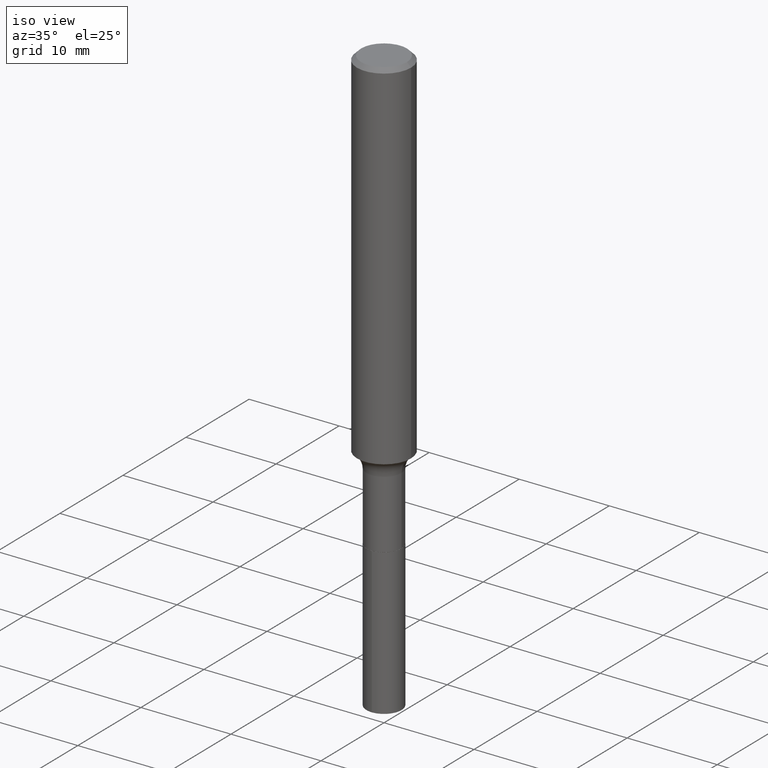
[diagram: clean part render]
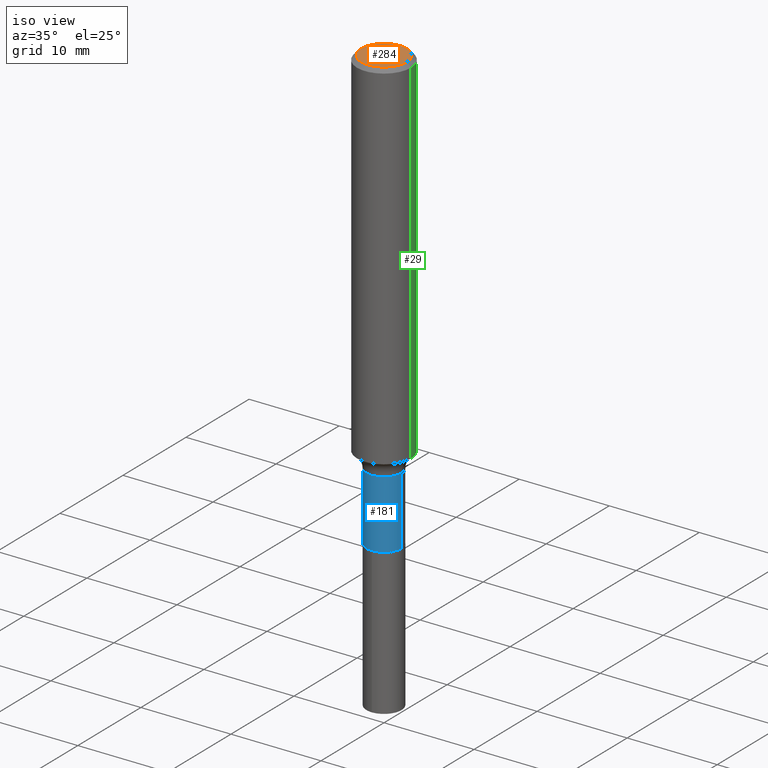
[diagram: same view with three faces highlighted in distinct colors, each labeled with its STEP entity id]
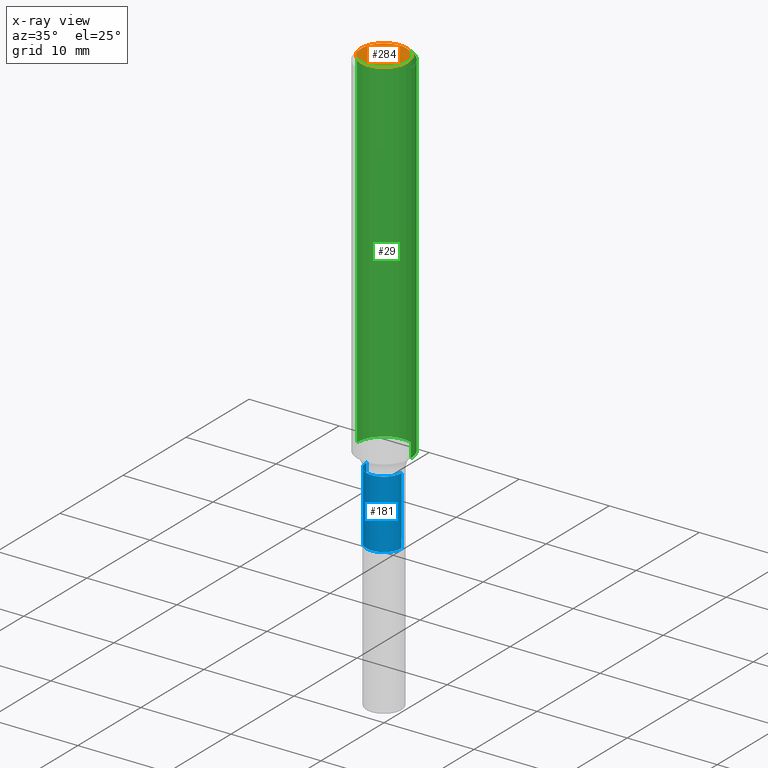
[diagram: x-ray of the same camera — body ghosted, the three highlighted faces saturated]
A machine part, iso view with three faces highlighted in distinct colors.
The next image is the same camera in x-ray (body ghosted, the three faces saturated) — at least one of them is partly hidden behind the body in this view.
Their STEP definitions:

[orange] entity #284 — the highlighted planar face has unit normal (0, -0, -1).
#38 = ORIENTED_EDGE ( 'NONE', *, *, #454, .T. ) ;
#42 = FACE_OUTER_BOUND ( 'NONE', #394, .T. ) ;
#61 = AXIS2_PLACEMENT_3D ( 'NONE', #416, #349, #338 ) ;
#131 = CIRCLE ( 'NONE', #462, 0.1003850000000000159 ) ;
#139 = CIRCLE ( 'NONE', #292, 0.1003850000000000159 ) ;
#177 = DIRECTION ( 'NONE',  ( -2.445468806185136597E-29, 3.491481338843145583E-15, 1.000000000000000000 ) ) ;
#185 = PLANE ( 'NONE',  #61 ) ;
#189 = EDGE_CURVE ( 'NONE', #421, #193, #139, .T. ) ;
#193 = VERTEX_POINT ( 'NONE', #297 ) ;
#194 = DIRECTION ( 'NONE',  ( 1.000000000000000000, -6.982962677686266711E-15, 4.875668750515085695E-29 ) ) ;
#205 = DIRECTION ( 'NONE',  ( -2.445468806185136597E-29, 3.491481338843145583E-15, 1.000000000000000000 ) ) ;
#257 = ORIENTED_EDGE ( 'NONE', *, *, #189, .T. ) ;
#264 = CARTESIAN_POINT ( 'NONE',  ( -0.1003850000000000159, 7.319105043583386689E-16, -2.868857591683090262E-17 ) ) ;
#277 = CARTESIAN_POINT ( 'NONE',  ( 7.015701749847187307E-46, -1.001656274515824970E-31, -2.868857591682589212E-17 ) ) ;
#284 = ADVANCED_FACE ( 'NONE', ( #42 ), #185, .F. ) ;
#292 = AXIS2_PLACEMENT_3D ( 'NONE', #294, #177, #439 ) ;
#294 = CARTESIAN_POINT ( 'NONE',  ( 7.015701749847187307E-46, -1.001656274515824970E-31, -2.868857591682589212E-17 ) ) ;
#297 = CARTESIAN_POINT ( 'NONE',  ( 0.1003850000000000159, -7.803837484803599345E-16, -2.868857591682071522E-17 ) ) ;
#338 = DIRECTION ( 'NONE',  ( -1.000000000000000000, 6.982962677686265922E-15, -4.876176775795935793E-29 ) ) ;
#349 = DIRECTION ( 'NONE',  ( 2.438088387897960049E-29, -3.491481338843145188E-15, -1.000000000000000000 ) ) ;
#394 = EDGE_LOOP ( 'NONE', ( #257, #38 ) ) ;
#416 = CARTESIAN_POINT ( 'NONE',  ( 3.507850874923593654E-46, -5.008281372579124849E-32, -1.434428795841294606E-17 ) ) ;
#421 = VERTEX_POINT ( 'NONE', #264 ) ;
#439 = DIRECTION ( 'NONE',  ( 1.000000000000000000, -6.982962677686266711E-15, 4.875668750515085695E-29 ) ) ;
#454 = EDGE_CURVE ( 'NONE', #193, #421, #131, .T. ) ;
#462 = AXIS2_PLACEMENT_3D ( 'NONE', #277, #205, #194 ) ;

[blue] entity #181 — the highlighted cylindrical surface (edge-blend (fillet) strip) has radius 1.9494 mm, axis along (-0, 0, 1).
#17 = CARTESIAN_POINT ( 'NONE',  ( -0.07674999999999997102, -5.667924066842443085E-15, -1.630500000000000060 ) ) ;
#18 = CIRCLE ( 'NONE', #169, 0.07674999999999999878 ) ;
#20 = DIRECTION ( 'NONE',  ( -2.445468806185136597E-29, 3.491481338843145583E-15, 1.000000000000000000 ) ) ;
#25 = DIRECTION ( 'NONE',  ( 1.000000000000000000, -6.982962677686273021E-15, 0.000000000000000000 ) ) ;
#33 = AXIS2_PLACEMENT_3D ( 'NONE', #477, #408, #220 ) ;
#40 = EDGE_LOOP ( 'NONE', ( #148, #301, #240, #113 ) ) ;
#65 = CARTESIAN_POINT ( 'NONE',  ( 0.07674999999999999878, -7.269613295605313095E-15, -1.928600000000000092 ) ) ;
#68 = VERTEX_POINT ( 'NONE', #17 ) ;
#69 = VECTOR ( 'NONE', #370, 39.37007874015748143 ) ;
#71 = CARTESIAN_POINT ( 'NONE',  ( -0.07674999999999998490, 5.453415496958767854E-16, -3.775282681770638931E-30 ) ) ;
#97 = LINE ( 'NONE', #402, #159 ) ;
#113 = ORIENTED_EDGE ( 'NONE', *, *, #245, .F. ) ;
#120 = VERTEX_POINT ( 'NONE', #65 ) ;
#125 = VERTEX_POINT ( 'NONE', #174 ) ;
#132 = VERTEX_POINT ( 'NONE', #337 ) ;
#133 = EDGE_CURVE ( 'NONE', #132, #120, #18, .T. ) ;
#138 = FACE_OUTER_BOUND ( 'NONE', #40, .T. ) ;
#148 = ORIENTED_EDGE ( 'NONE', *, *, #427, .F. ) ;
#159 = VECTOR ( 'NONE', #172, 39.37007874015748143 ) ;
#169 = AXIS2_PLACEMENT_3D ( 'NONE', #330, #259, #25 ) ;
#172 = DIRECTION ( 'NONE',  ( -2.445468806185136877E-29, 3.491481338843145188E-15, 1.000000000000000000 ) ) ;
#174 = CARTESIAN_POINT ( 'NONE',  ( 0.07674999999999997102, -6.228802708496169280E-15, -1.630500000000000060 ) ) ;
#181 = ADVANCED_FACE ( 'NONE', ( #138 ), #258, .T. ) ;
#183 = CIRCLE ( 'NONE', #33, 0.07674999999999997102 ) ;
#202 = EDGE_CURVE ( 'NONE', #120, #125, #97, .T. ) ;
#220 = DIRECTION ( 'NONE',  ( 1.000000000000000000, -6.982962677686261977E-15, 0.000000000000000000 ) ) ;
#240 = ORIENTED_EDGE ( 'NONE', *, *, #202, .T. ) ;
#245 = EDGE_CURVE ( 'NONE', #68, #125, #183, .T. ) ;
#258 = CYLINDRICAL_SURFACE ( 'NONE', #360, 0.07674999999999998490 ) ;
#259 = DIRECTION ( 'NONE',  ( -2.445468806185136597E-29, 3.491481338843145583E-15, 1.000000000000000000 ) ) ;
#260 = DIRECTION ( 'NONE',  ( 1.000000000000000000, -6.982962677686265922E-15, 4.876176775795935793E-29 ) ) ;
#301 = ORIENTED_EDGE ( 'NONE', *, *, #133, .T. ) ;
#330 = CARTESIAN_POINT ( 'NONE',  ( 4.716331139608654438E-29, -6.733670910092890989E-15, -1.928600000000000092 ) ) ;
#337 = CARTESIAN_POINT ( 'NONE',  ( -0.07674999999999999878, -5.667924066842443085E-15, -1.928600000000000092 ) ) ;
#360 = AXIS2_PLACEMENT_3D ( 'NONE', #473, #20, #260 ) ;
#370 = DIRECTION ( 'NONE',  ( -2.445468806185136877E-29, 3.491481338843145188E-15, 1.000000000000000000 ) ) ;
#402 = CARTESIAN_POINT ( 'NONE',  ( 0.07674999999999998490, -5.359423855124208241E-16, 3.742465675423380104E-30 ) ) ;
#408 = DIRECTION ( 'NONE',  ( -2.445468806185136597E-29, 3.491481338843145583E-15, 1.000000000000000000 ) ) ;
#411 = LINE ( 'NONE', #71, #69 ) ;
#427 = EDGE_CURVE ( 'NONE', #132, #68, #411, .T. ) ;
#473 = CARTESIAN_POINT ( 'NONE',  ( 0.000000000000000000, 0.000000000000000000, 0.000000000000000000 ) ) ;
#477 = CARTESIAN_POINT ( 'NONE',  ( 3.987336888484864983E-29, -5.692860322983748752E-15, -1.630500000000000060 ) ) ;

[green] entity #29 — the highlighted cylindrical surface (edge-blend (fillet) strip) has radius 2.9997 mm, axis along (-0, 0, 1).
#13 = VERTEX_POINT ( 'NONE', #239 ) ;
#14 = DIRECTION ( 'NONE',  ( -2.445468806185136597E-29, 3.491481338843145583E-15, 1.000000000000000000 ) ) ;
#19 = VECTOR ( 'NONE', #229, 39.37007874015748143 ) ;
#29 = ADVANCED_FACE ( 'NONE', ( #278 ), #388, .T. ) ;
#62 = EDGE_CURVE ( 'NONE', #327, #13, #409, .T. ) ;
#72 = CARTESIAN_POINT ( 'NONE',  ( 0.1181000000000001077, -8.246878922347488542E-16, 5.758764772215005345E-30 ) ) ;
#81 = CIRCLE ( 'NONE', #115, 0.1180999999999999966 ) ;
#110 = CARTESIAN_POINT ( 'NONE',  ( 0.1181000000000001909, -6.277148188467687568E-15, -1.561646695794609796 ) ) ;
#115 = AXIS2_PLACEMENT_3D ( 'NONE', #155, #428, #463 ) ;
#140 = ORIENTED_EDGE ( 'NONE', *, *, #450, .F. ) ;
#149 = LINE ( 'NONE', #344, #19 ) ;
#155 = CARTESIAN_POINT ( 'NONE',  ( 4.332147990156995868E-31, -6.185159191760669162E-17, -0.01771500000000010566 ) ) ;
#197 = DIRECTION ( 'NONE',  ( 1.000000000000000000, -6.982962677686268288E-15, 0.000000000000000000 ) ) ;
#206 = DIRECTION ( 'NONE',  ( 1.000000000000000000, -6.982962677686266711E-15, 4.876176775795935793E-29 ) ) ;
#219 = EDGE_LOOP ( 'NONE', ( #417, #232, #309, #140 ) ) ;
#225 = DIRECTION ( 'NONE',  ( -2.445468806185136877E-29, 3.491481338843145188E-15, 1.000000000000000000 ) ) ;
#229 = DIRECTION ( 'NONE',  ( -2.445468806185136877E-29, 3.491481338843145188E-15, 1.000000000000000000 ) ) ;
#232 = ORIENTED_EDGE ( 'NONE', *, *, #334, .T. ) ;
#236 = DIRECTION ( 'NONE',  ( -2.445468806185136597E-29, 3.491481338843145583E-15, 1.000000000000000000 ) ) ;
#239 = CARTESIAN_POINT ( 'NONE',  ( -0.1181000000000001909, -4.613309325300259530E-15, -1.561646695794609796 ) ) ;
#276 = CARTESIAN_POINT ( 'NONE',  ( 0.000000000000000000, 0.000000000000000000, 0.000000000000000000 ) ) ;
#278 = FACE_OUTER_BOUND ( 'NONE', #219, .T. ) ;
#309 = ORIENTED_EDGE ( 'NONE', *, *, #459, .F. ) ;
#311 = VERTEX_POINT ( 'NONE', #444 ) ;
#327 = VERTEX_POINT ( 'NONE', #110 ) ;
#334 = EDGE_CURVE ( 'NONE', #13, #311, #149, .T. ) ;
#344 = CARTESIAN_POINT ( 'NONE',  ( -0.1181000000000001077, 8.391509709326790846E-16, -5.809262341591049389E-30 ) ) ;
#346 = CARTESIAN_POINT ( 'NONE',  ( 0.1180999999999999966, -8.865394841523547570E-16, -0.01771500000000010566 ) ) ;
#388 = CYLINDRICAL_SURFACE ( 'NONE', #403, 0.1181000000000001077 ) ;
#400 = VERTEX_POINT ( 'NONE', #346 ) ;
#403 = AXIS2_PLACEMENT_3D ( 'NONE', #276, #14, #206 ) ;
#409 = CIRCLE ( 'NONE', #482, 0.1181000000000002048 ) ;
#417 = ORIENTED_EDGE ( 'NONE', *, *, #62, .T. ) ;
#428 = DIRECTION ( 'NONE',  ( -2.445468806185136597E-29, 3.491481338843145583E-15, 1.000000000000000000 ) ) ;
#444 = CARTESIAN_POINT ( 'NONE',  ( -0.1180999999999999966, -1.918004973142592583E-15, -0.01771500000000010566 ) ) ;
#446 = LINE ( 'NONE', #72, #476 ) ;
#450 = EDGE_CURVE ( 'NONE', #327, #400, #446, .T. ) ;
#459 = EDGE_CURVE ( 'NONE', #400, #311, #81, .T. ) ;
#463 = DIRECTION ( 'NONE',  ( 1.000000000000000000, -6.982962677686266711E-15, 0.000000000000000000 ) ) ;
#465 = CARTESIAN_POINT ( 'NONE',  ( 3.818958280847807786E-29, -5.452460296232937727E-15, -1.561646695794609796 ) ) ;
#476 = VECTOR ( 'NONE', #225, 39.37007874015748143 ) ;
#482 = AXIS2_PLACEMENT_3D ( 'NONE', #465, #236, #197 ) ;